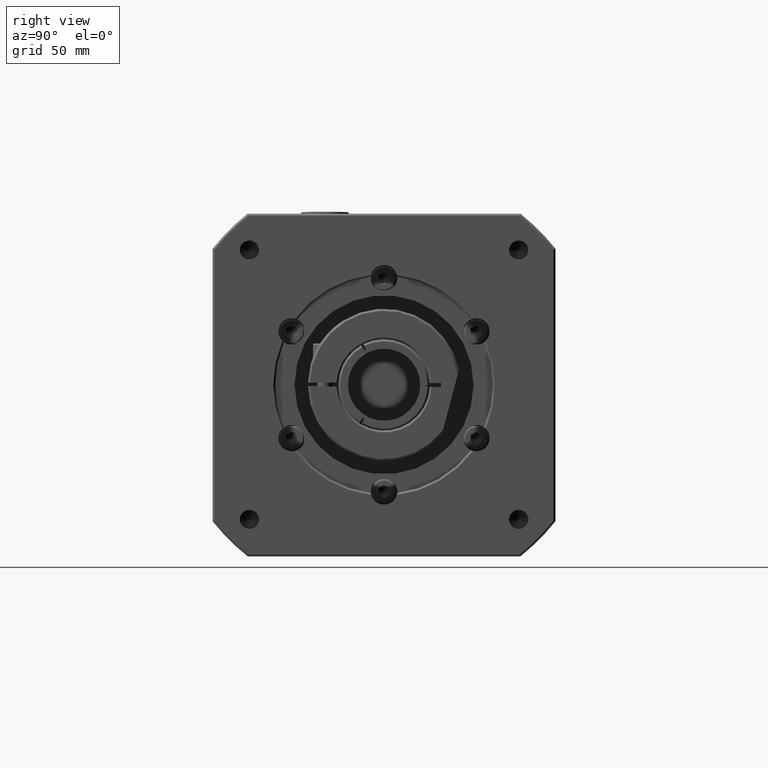
[diagram: clean part render]
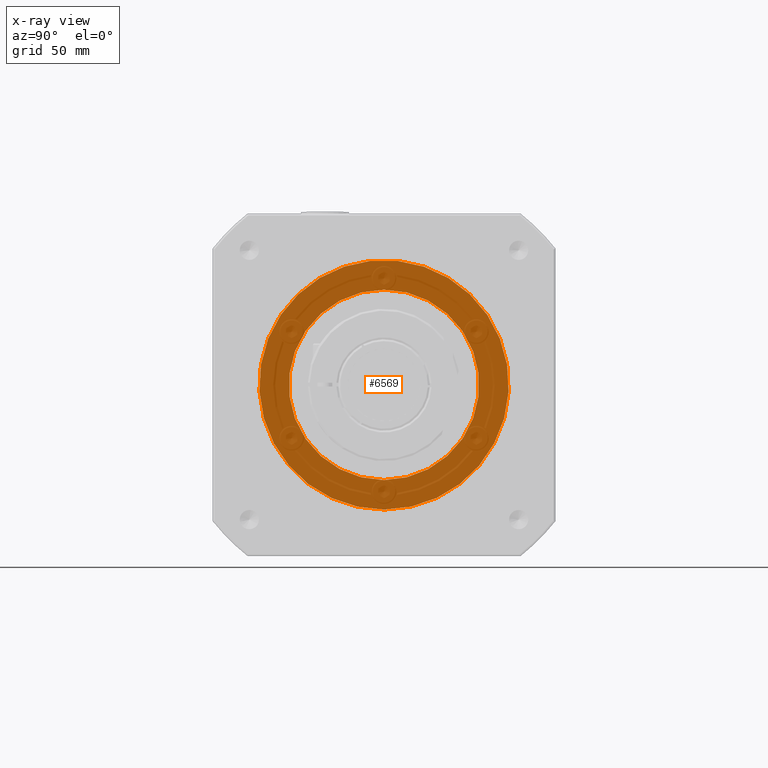
[diagram: x-ray — body ghosted, one internal face saturated and labeled with its STEP entity id]
A machine part, right view, then the same camera in x-ray: the body is ghosted and one INTERNAL B-rep face — a face not visible from any outside direction — is saturated and labeled: STEP entity #6569.
In plain terms, the highlighted planar face has unit normal (-1, 0, 0).
Its self-contained STEP definition (entity closure, byte-faithful):
#1467=FACE_BOUND('',#2302,.T.);
#1761=FACE_OUTER_BOUND('',#2301,.T.);
#2301=EDGE_LOOP('',(#5131));
#2302=EDGE_LOOP('',(#5132));
#2836=CIRCLE('',#7193,50.);
#2837=CIRCLE('',#7195,65.5);
#3293=VERTEX_POINT('',#10670);
#3294=VERTEX_POINT('',#10673);
#3978=EDGE_CURVE('',#3293,#3293,#2836,.T.);
#3979=EDGE_CURVE('',#3294,#3294,#2837,.T.);
#5131=ORIENTED_EDGE('',*,*,#3979,.T.);
#5132=ORIENTED_EDGE('',*,*,#3978,.T.);
#6262=PLANE('',#7194);
#6569=ADVANCED_FACE('',(#1761,#1467),#6262,.T.);
#7193=AXIS2_PLACEMENT_3D('',#10671,#8449,#8450);
#7194=AXIS2_PLACEMENT_3D('',#10672,#8451,#8452);
#7195=AXIS2_PLACEMENT_3D('',#10674,#8453,#8454);
#8449=DIRECTION('center_axis',(1.,-6.95425372247217E-16,-1.53804166617373E-15));
#8450=DIRECTION('ref_axis',(1.53804166617373E-15,-1.609823385706E-15,1.));
#8451=DIRECTION('center_axis',(-1.,6.95425372247217E-16,1.53804166617373E-15));
#8452=DIRECTION('ref_axis',(2.8421709430404E-15,-2.8421709430404E-15,1.));
#8453=DIRECTION('center_axis',(-1.,9.99200722162628E-16,9.84803175675623E-16));
#8454=DIRECTION('ref_axis',(9.84803175675621E-16,-1.5681900222825E-15,1.));
#10670=CARTESIAN_POINT('',(-171.559385272837,-150.310004596179,-127.002525992932));
#10671=CARTESIAN_POINT('Origin',(-171.559385272837,-150.310004596179,-77.0025259929322));
#10672=CARTESIAN_POINT('Origin',(-171.559385272837,-150.310004596179,-77.0025259929322));
#10673=CARTESIAN_POINT('',(-171.559385272837,-150.310004596179,-142.502525992932));
#10674=CARTESIAN_POINT('Origin',(-171.559385272836,-150.310004596179,-77.0025259929323));